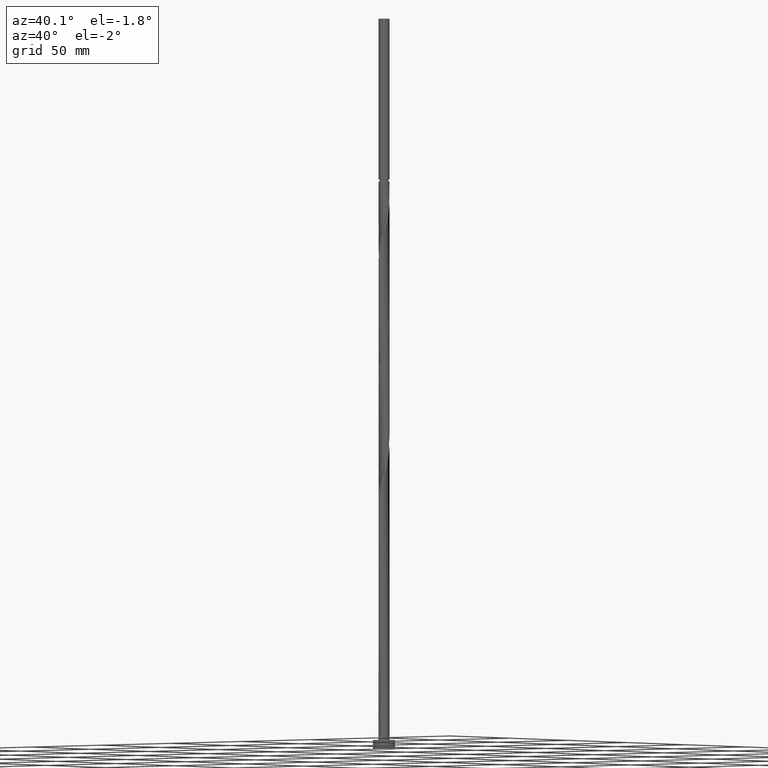
[diagram: clean part render]
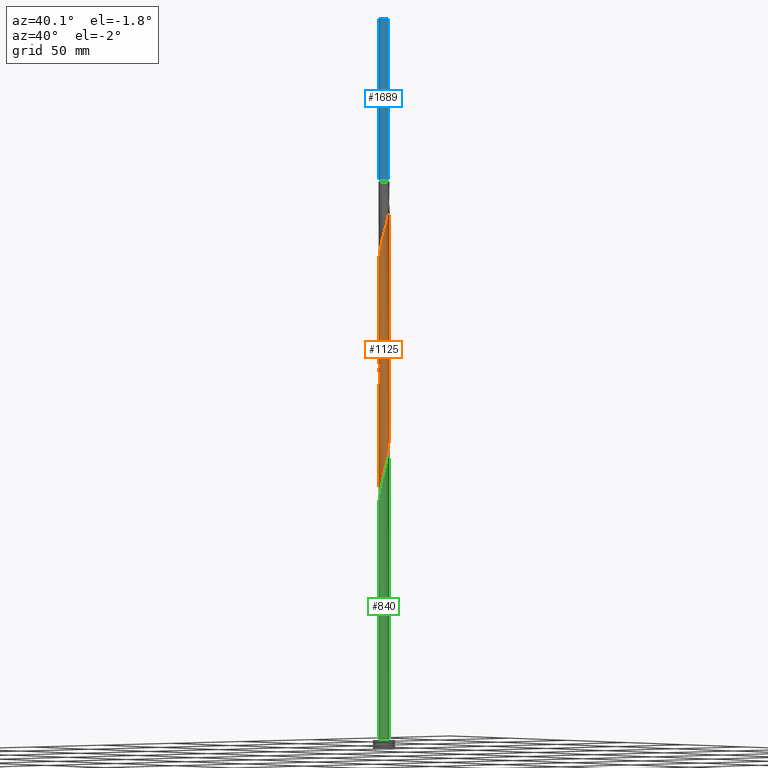
[diagram: same view with three faces highlighted in distinct colors, each labeled with its STEP entity id]
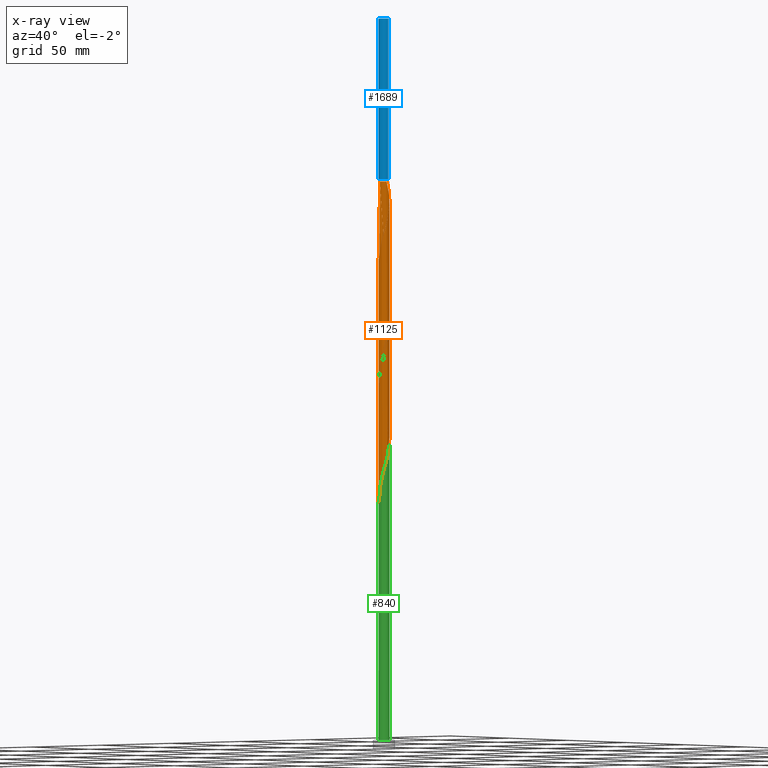
[diagram: x-ray of the same camera — body ghosted, the three highlighted faces saturated]
A machine part, auxiliary view with three faces highlighted in distinct colors.
The next image is the same camera in x-ray (body ghosted, the three faces saturated) — at least one of them is partly hidden behind the body in this view.
Their STEP definitions:

[orange] entity #1125 — the highlighted cylindrical surface (bore or boss wall) has radius 3 mm, axis along (-0, -0, -1).
#2 = CARTESIAN_POINT ( 'NONE',  ( 2.999999999999999112, 3.124218822919013652E-15, 229.6826967982752876 ) ) ;
#11 = CARTESIAN_POINT ( 'NONE',  ( -1.741185482790978067, -2.443004935426440039, 206.4461424436426285 ) ) ;
#21 = CARTESIAN_POINT ( 'NONE',  ( -2.861491667719901155, -0.9010357570982413522, 262.0016979991981998 ) ) ;
#22 = DIRECTION ( 'NONE',  ( -0.000000000000000000, -0.000000000000000000, -1.000000000000000000 ) ) ;
#26 = CARTESIAN_POINT ( 'NONE',  ( 2.247618455994261133, -1.987010638188424938, 222.0016979991982566 ) ) ;
#27 = EDGE_CURVE ( 'NONE', #1034, #711, #1568, .T. ) ;
#29 = CARTESIAN_POINT ( 'NONE',  ( -3.000000000000004441, -3.737103855166255906E-16, 258.7651436445656259 ) ) ;
#37 = CARTESIAN_POINT ( 'NONE',  ( 0.9582386936374899244, -2.860279830445433991, 216.4461424436427137 ) ) ;
#47 = CARTESIAN_POINT ( 'NONE',  ( 2.424175730171094223, 1.795214230025620861, 236.4461424436426853 ) ) ;
#49 = CARTESIAN_POINT ( 'NONE',  ( 0.6504259784947309386, 2.928642355512054429, 306.4461424436426569 ) ) ;
#51 = ORIENTED_EDGE ( 'NONE', *, *, #172, .F. ) ;
#57 = CARTESIAN_POINT ( 'NONE',  ( 2.980586974261062672, 0.3407363920471038199, 230.8905868880871139 ) ) ;
#58 = CARTESIAN_POINT ( 'NONE',  ( -2.766788993523056739, 1.201790650553046236, 192.0016979991982851 ) ) ;
#60 = CARTESIAN_POINT ( 'NONE',  ( 2.424175730171096443, -1.795214230025627522, 285.3350313325315710 ) ) ;
#67 = CARTESIAN_POINT ( 'NONE',  ( 2.038775222402704035, -2.223244857174722089, 154.2239202214204568 ) ) ;
#77 = CARTESIAN_POINT ( 'NONE',  ( -1.245111594254570964, 2.729413328510879033, 250.8905868880871424 ) ) ;
#78 = CARTESIAN_POINT ( 'NONE',  ( -2.247618455994261577, 1.987010638188424050, 188.6683646658648570 ) ) ;
#79 = EDGE_CURVE ( 'NONE', #580, #1280, #1336, .T. ) ;
#83 = DIRECTION ( 'NONE',  ( -0.000000000000000000, -0.000000000000000000, -1.000000000000000000 ) ) ;
#89 = CARTESIAN_POINT ( 'NONE',  ( 2.766788993523056739, -1.201790650553047124, 158.6683646658648854 ) ) ;
#90 = CARTESIAN_POINT ( 'NONE',  ( -2.456461689585820007, 1.750776419202126677, 256.4461424436427137 ) ) ;
#92 = CARTESIAN_POINT ( 'NONE',  ( 3.000000000000000444, 3.673940397442059868E-16, 310.8905868880871139 ) ) ;
#95 = CARTESIAN_POINT ( 'NONE',  ( 0.6504259784947260536, -2.928642355512052653, 148.6683646658649138 ) ) ;
#99 = CARTESIAN_POINT ( 'NONE',  ( -2.999999999999999556, 1.778861435059151567E-15, 263.0160301316086588 ) ) ;
#147 = CARTESIAN_POINT ( 'NONE',  ( 3.000000000000000444, 3.673940397442059868E-16, 400.0000000000000000 ) ) ;
#158 = CARTESIAN_POINT ( 'NONE',  ( -2.999999999999975131, 0.000000000000000000, 310.8905868880871139 ) ) ;
#163 = VERTEX_POINT ( 'NONE', #158 ) ;
#166 = CARTESIAN_POINT ( 'NONE',  ( -2.611625341554443924, -1.476283534877587789, 264.2239202214203146 ) ) ;
#172 = EDGE_CURVE ( 'NONE', #1114, #711, #744, .T. ) ;
#179 = CARTESIAN_POINT ( 'NONE',  ( 0.9059989139450649320, 2.877253563794371249, 243.1128091103093993 ) ) ;
#181 = CARTESIAN_POINT ( 'NONE',  ( -2.986297077045553916, -0.2864083930844377734, 259.7794757769759713 ) ) ;
#188 = ORIENTED_EDGE ( 'NONE', *, *, #713, .F. ) ;
#189 = CARTESIAN_POINT ( 'NONE',  ( -0.9059989139450634887, -2.877253563794372138, 209.7794757769759997 ) ) ;
#191 = CARTESIAN_POINT ( 'NONE',  ( -0.2879860105828826455, 3.002746436205634417, 309.7794757769760281 ) ) ;
#198 = CARTESIAN_POINT ( 'NONE',  ( 2.844610918258236865, 0.9529893618115734544, 233.1128091103093141 ) ) ;
#199 = CARTESIAN_POINT ( 'NONE',  ( 1.785379858637177408, -2.410895841875524415, 219.7794757769759713 ) ) ;
#201 = CARTESIAN_POINT ( 'NONE',  ( -0.02731362638454108011, -2.999875658392152644, 275.3350313325314005 ) ) ;
#208 = CARTESIAN_POINT ( 'NONE',  ( -1.531984494871651670, 2.598546826576325852, 185.3350313325315710 ) ) ;
#210 = CARTESIAN_POINT ( 'NONE',  ( 1.997955648279248875, -2.259998966802002851, 283.1128091103093993 ) ) ;
#218 = CARTESIAN_POINT ( 'NONE',  ( 1.741185482790978956, 2.443004935426439150, 173.1128091103093141 ) ) ;
#220 = CARTESIAN_POINT ( 'NONE',  ( 2.211065689225172548, -2.027606598413814076, 284.2239202214204283 ) ) ;
#224 = VECTOR ( 'NONE', #83, 1000.000000000000000 ) ;
#229 = CARTESIAN_POINT ( 'NONE',  ( 2.956194341916738022, -0.6002808636434362466, 160.8905868880871139 ) ) ;
#238 = CARTESIAN_POINT ( 'NONE',  ( 1.531984494871650559, -2.598546826576326296, 152.0016979991982566 ) ) ;
#241 = CARTESIAN_POINT ( 'NONE',  ( 0.000000000000000000, 0.000000000000000000, 400.0000000000000000 ) ) ;
#247 = CARTESIAN_POINT ( 'NONE',  ( 0.9582386936374899244, -2.860279830445433991, 149.7794757769759997 ) ) ;
#259 = CARTESIAN_POINT ( 'NONE',  ( 0.000000000000000000, 0.000000000000000000, 310.8905868880871139 ) ) ;
#273 =( BOUNDED_CURVE ( )  B_SPLINE_CURVE ( 2, ( #2, #592, #442, #1023, #1608, #876, #1127, #1713, #26, #617, #199, #1194, #1777, #37, #328, #902, #1060, #1646, #336, #189, #915, #1358, #11, #600, #795, #936, #498, #1812, #1521, #1682, #1112, #510, #1532, #352, #1241, #58, #1397, #1232, #78, #1104, #1690, #208, #1536, #522, #925, #1822, #1098, #1840, #369, #360, #655, #1375, #218, #1386, #945, #1080, #1251, #1220, #787, #644, #955, #1831, #667, #229, #965, #89, #1803, #677, #1557, #67, #1547, #238, #1407, #247, #95, #1703, #688, #1261, #539, #1664, #1097, #1111, #1396, #1830, #1702, #387, #1231, #1681, #1673, #359, #935, #368, #462 ),
 .UNSPECIFIED., .F., .T. ) 
 B_SPLINE_CURVE_WITH_KNOTS ( ( 3, 2, 2, 2, 2, 2, 2, 2, 2, 2, 2, 2, 2, 2, 2, 2, 2, 2, 2, 2, 2, 2, 2, 2, 2, 2, 2, 2, 2, 2, 2, 2, 2, 2, 2, 2, 2, 2, 2, 2, 2, 2, 2, 2, 2, 2, 3 ),
 ( 0.5545286012773115170, 0.5583333333333333481, 0.5666666666666666519, 0.5749999999999999556, 0.5833333333333333703, 0.5916666666666666741, 0.5999999999999999778, 0.6083333333333332815, 0.6166666666666666963, 0.6250000000000000000, 0.6333333333333333037, 0.6416666666666667185, 0.6500000000000000222, 0.6583333333333333259, 0.6666666666666666297, 0.6750000000000000444, 0.6833333333333333481, 0.6916666666666666519, 0.6999999999999999556, 0.7083333333333333703, 0.7166666666666666741, 0.7249999999999999778, 0.7333333333333332815, 0.7416666666666666963, 0.7500000000000000000, 0.7583333333333333037, 0.7666666666666667185, 0.7750000000000000222, 0.7833333333333333259, 0.7916666666666666297, 0.8000000000000000444, 0.8083333333333333481, 0.8166666666666666519, 0.8249999999999999556, 0.8333333333333333703, 0.8416666666666666741, 0.8499999999999999778, 0.8583333333333332815, 0.8666666666666666963, 0.8750000000000000000, 0.8833333333333333037, 0.8916666666666667185, 0.8999999999999999112, 0.9083333333333332149, 0.9166666666666665186, 0.9250000000000000444, 0.9295286012773116280 ),
 .UNSPECIFIED. ) 
 CURVE ( )  GEOMETRIC_REPRESENTATION_ITEM ( )  RATIONAL_B_SPLINE_CURVE ( ( 0.9066196499552310328, 0.9068171577856438681, 0.9090909090909428114, 0.9041108139711909741, 0.9090909090909428114, 0.9041108139711909741, 0.9090909090909428114, 0.9041108139711909741, 0.9090909090909428114, 0.9041108139711909741, 0.9090909090909428114, 0.9041108139711909741, 0.9090909090909428114, 0.9041108139711909741, 0.9090909090909428114, 0.9041108139711909741, 0.9090909090909428114, 0.9041108139711909741, 0.9090909090909428114, 0.9041108139711909741, 0.9090909090909428114, 0.9041108139711909741, 0.9090909090909428114, 0.9041108139711909741, 0.9090909090909428114, 0.9041108139711909741, 0.9090909090909428114, 0.9041108139711909741, 0.9090909090909428114, 0.9041108139711909741, 0.9090909090909428114, 0.9041108139711909741, 0.9090909090909428114, 0.9041108139711909741, 0.9090909090909428114, 0.9041108139711909741, 0.9090909090909428114, 0.9041108139711909741, 0.9090909090909428114, 0.9041108139711909741, 0.9090909090909428114, 0.9041108139711909741, 0.9090909090909428114, 0.9041108139711909741, 0.9090909090909428114, 0.9041108139711909741, 0.9090909090909428114, 0.9041108139711909741, 0.9090909090909428114, 0.9041108139711909741, 0.9090909090909428114, 0.9041108139711909741, 0.9090909090909428114, 0.9041108139711909741, 0.9090909090909428114, 0.9041108139711909741, 0.9090909090909428114, 0.9041108139711909741, 0.9090909090909428114, 0.9041108139711909741, 0.9090909090909428114, 0.9041108139711909741, 0.9090909090909428114, 0.9041108139711909741, 0.9090909090909428114, 0.9041108139711909741, 0.9090909090909428114, 0.9041108139711909741, 0.9090909090909428114, 0.9041108139711909741, 0.9090909090909428114, 0.9041108139711909741, 0.9090909090909428114, 0.9041108139711909741, 0.9090909090909428114, 0.9041108139711909741, 0.9090909090909428114, 0.9041108139711909741, 0.9090909090909428114, 0.9041108139711909741, 0.9090909090909428114, 0.9041108139711909741, 0.9090909090909428114, 0.9041108139711909741, 0.9090909090909428114, 0.9041108139711909741, 0.9090909090909428114, 0.9041108139711909741, 0.9090909090909428114, 0.9041108139711909741, 0.9090909090909428114, 0.9063845652764898064, 0.9066196499552311439 ) ) 
 REPRESENTATION_ITEM ( '' )  );
#313 = CARTESIAN_POINT ( 'NONE',  ( -2.766788993523062512, -1.201790650553046458, 263.1128091103093993 ) ) ;
#328 = CARTESIAN_POINT ( 'NONE',  ( 0.6504259784947260536, -2.928642355512052653, 215.3350313325315994 ) ) ;
#336 = CARTESIAN_POINT ( 'NONE',  ( -0.5969924622639740663, -2.939999999999999503, 210.8905868880870571 ) ) ;
#343 = CARTESIAN_POINT ( 'NONE',  ( 2.844610918258239973, -0.9529893618115790055, 288.6683646658648854 ) ) ;
#352 = CARTESIAN_POINT ( 'NONE',  ( -2.956194341916738022, 0.6002808636434359135, 194.2239202214204283 ) ) ;
#354 = CARTESIAN_POINT ( 'NONE',  ( 1.484415317302709925, -2.626010904050890105, 280.8905868880871139 ) ) ;
#359 = CARTESIAN_POINT ( 'NONE',  ( -2.944774136347767968, -0.6540087066196497156, 132.0016979991982851 ) ) ;
#360 = CARTESIAN_POINT ( 'NONE',  ( 0.9059989139450649320, 2.877253563794371249, 176.4461424436426285 ) ) ;
#368 = CARTESIAN_POINT ( 'NONE',  ( -3.000000000000000444, -0.1709212123392913063, 130.2882881076598665 ) ) ;
#369 = CARTESIAN_POINT ( 'NONE',  ( 0.5969924622639745104, 2.939999999999999503, 177.5572535547537711 ) ) ;
#371 = CARTESIAN_POINT ( 'NONE',  ( 2.247618455994266462, 1.987010638188424938, 299.7794757769759713 ) ) ;
#379 = LINE ( 'NONE', #542, #224 ) ;
#387 = CARTESIAN_POINT ( 'NONE',  ( -2.424175730171093779, -1.795214230025623081, 136.4461424436426569 ) ) ;
#390 = CARTESIAN_POINT ( 'NONE',  ( -2.999999999999999556, 1.778861435059151567E-15, 263.0160301316086588 ) ) ;
#416 = EDGE_CURVE ( 'NONE', #580, #1121, #975, .T. ) ;
#442 = CARTESIAN_POINT ( 'NONE',  ( 2.986297077045549031, -0.2864083930844399939, 228.6683646658649138 ) ) ;
#462 = CARTESIAN_POINT ( 'NONE',  ( -2.999999999999999112, 4.021123748158922761E-15, 129.6826967982752592 ) ) ;
#464 = CARTESIAN_POINT ( 'NONE',  ( -1.531984494871655222, -2.598546826576330737, 269.7794757769760281 ) ) ;
#469 = CARTESIAN_POINT ( 'NONE',  ( -1.531984494871651670, 2.598546826576325852, 252.0016979991983135 ) ) ;
#471 = CARTESIAN_POINT ( 'NONE',  ( -3.000000000000004441, -0.1435319978602539459, 259.2736921701297206 ) ) ;
#479 = CARTESIAN_POINT ( 'NONE',  ( 1.195207115623886818, 2.751632233922627346, 242.0016979991982282 ) ) ;
#486 = CARTESIAN_POINT ( 'NONE',  ( 2.584311715169899770, 1.523592123514560415, 235.3350313325315710 ) ) ;
#497 = CARTESIAN_POINT ( 'NONE',  ( 2.999999999999999112, 3.124218822919013652E-15, 229.6826967982752876 ) ) ;
#498 = CARTESIAN_POINT ( 'NONE',  ( -2.584311715169899770, -1.523592123514560859, 202.0016979991982851 ) ) ;
#500 = CARTESIAN_POINT ( 'NONE',  ( 2.944774136347770188, -0.6540087066196539345, 289.7794757769760281 ) ) ;
#510 = CARTESIAN_POINT ( 'NONE',  ( -3.016399812174359596, -0.02746407747455821211, 196.4461424436426569 ) ) ;
#512 = CARTESIAN_POINT ( 'NONE',  ( 0.3426132633519656800, 2.997004880578674424, 307.5572535547537427 ) ) ;
#522 = CARTESIAN_POINT ( 'NONE',  ( -0.9582386936374909236, 2.860279830445433547, 183.1128091103093709 ) ) ;
#523 = CARTESIAN_POINT ( 'NONE',  ( -2.611625341554437707, 1.476283534877586012, 257.5572535547537427 ) ) ;
#539 = CARTESIAN_POINT ( 'NONE',  ( -0.5969924622639740663, -2.939999999999999503, 144.2239202214204568 ) ) ;
#542 = CARTESIAN_POINT ( 'NONE',  ( -3.000000000000000444, 0.000000000000000000, 400.0000000000000000 ) ) ;
#569 = CARTESIAN_POINT ( 'NONE',  ( -3.000000000000004885, -3.737103855166255413E-16, 258.7651436445656259 ) ) ;
#574 = EDGE_CURVE ( 'NONE', #163, #1121, #1265, .T. ) ;
#580 = VERTEX_POINT ( 'NONE', #569 ) ;
#592 = CARTESIAN_POINT ( 'NONE',  ( 2.999999999999999556, -0.1435319978602524471, 229.1741482727112498 ) ) ;
#600 = CARTESIAN_POINT ( 'NONE',  ( -1.997955648279247542, -2.259998966801997522, 205.3350313325315426 ) ) ;
#605 = DIRECTION ( 'NONE',  ( -0.000000000000000000, -0.000000000000000000, -1.000000000000000000 ) ) ;
#617 = CARTESIAN_POINT ( 'NONE',  ( 2.038775222402704035, -2.223244857174722089, 220.8905868880871992 ) ) ;
#628 = CARTESIAN_POINT ( 'NONE',  ( 0.2879860105828851990, 3.002746436205627756, 245.3350313325315710 ) ) ;
#640 = CARTESIAN_POINT ( 'NONE',  ( 0.2879860105828842554, -3.002746436205634417, 276.4461424436426569 ) ) ;
#643 = CARTESIAN_POINT ( 'NONE',  ( 3.000000000000000444, 0.1709212123392943872, 230.2882881076598380 ) ) ;
#644 = CARTESIAN_POINT ( 'NONE',  ( 2.944774136347767968, 0.6540087066196483834, 165.3350313325315994 ) ) ;
#653 = CARTESIAN_POINT ( 'NONE',  ( -0.9582386936374909236, 2.860279830445433547, 249.7794757769759997 ) ) ;
#655 = CARTESIAN_POINT ( 'NONE',  ( 1.195207115623886818, 2.751632233922627346, 175.3350313325315710 ) ) ;
#657 = CARTESIAN_POINT ( 'NONE',  ( 0.5969924622639738443, -2.940000000000004832, 277.5572535547537996 ) ) ;
#667 = CARTESIAN_POINT ( 'NONE',  ( 2.986297077045549031, -0.2864083930844399939, 162.0016979991982282 ) ) ;
#669 = CARTESIAN_POINT ( 'NONE',  ( 2.611625341554443924, 1.476283534877587122, 297.5572535547537427 ) ) ;
#671 = CARTESIAN_POINT ( 'NONE',  ( -0.5969924622640615519, 2.940000000000879687, 310.8905868880871139 ) ) ;
#674 = ORIENTED_EDGE ( 'NONE', *, *, #574, .T. ) ;
#677 = CARTESIAN_POINT ( 'NONE',  ( 2.456461689585818675, -1.750776419202128231, 156.4461424436427137 ) ) ;
#688 = CARTESIAN_POINT ( 'NONE',  ( 0.02731362638453841557, -2.999875658392147759, 146.4461424436426853 ) ) ;
#711 = VERTEX_POINT ( 'NONE', #1752 ) ;
#713 = EDGE_CURVE ( 'NONE', #711, #1280, #273, .T. ) ;
#744 = LINE ( 'NONE', #147, #818 ) ;
#770 = CARTESIAN_POINT ( 'NONE',  ( 1.484415317302708592, 2.626010904050883887, 240.8905868880871139 ) ) ;
#772 = CARTESIAN_POINT ( 'NONE',  ( 1.245111594254574072, 2.729413328510883030, 304.2239202214204283 ) ) ;
#779 = CARTESIAN_POINT ( 'NONE',  ( 2.944774136347767968, 0.6540087066196483834, 232.0016979991982282 ) ) ;
#781 = CARTESIAN_POINT ( 'NONE',  ( 2.980586974261068001, -0.3407363920471058738, 290.8905868880870571 ) ) ;
#787 = CARTESIAN_POINT ( 'NONE',  ( 2.844610918258236865, 0.9529893618115734544, 166.4461424436426569 ) ) ;
#789 = CARTESIAN_POINT ( 'NONE',  ( 2.861491667719901599, 0.9010357570982404640, 295.3350313325314573 ) ) ;
#795 = CARTESIAN_POINT ( 'NONE',  ( -2.211065689225169884, -2.027606598413810080, 204.2239202214204568 ) ) ;
#797 = CARTESIAN_POINT ( 'NONE',  ( 1.785379858637182293, 2.410895841875526191, 302.0016979991981430 ) ) ;
#804 = CARTESIAN_POINT ( 'NONE',  ( -2.956194341916738022, 0.6002808636434359135, 260.8905868880870571 ) ) ;
#818 = VECTOR ( 'NONE', #22, 1000.000000000000000 ) ;
#828 = ORIENTED_EDGE ( 'NONE', *, *, #416, .F. ) ;
#876 = CARTESIAN_POINT ( 'NONE',  ( 2.766788993523056739, -1.201790650553047124, 225.3350313325315994 ) ) ;
#901 = CARTESIAN_POINT ( 'NONE',  ( -2.038775222402704035, 2.223244857174721645, 254.2239202214204283 ) ) ;
#902 = CARTESIAN_POINT ( 'NONE',  ( 0.3426132633519633486, -2.997004880578669095, 214.2239202214204852 ) ) ;
#914 = CARTESIAN_POINT ( 'NONE',  ( -0.3426132633519636261, 2.997004880578669095, 247.5572535547537711 ) ) ;
#915 = CARTESIAN_POINT ( 'NONE',  ( -1.195207115623886374, -2.751632233922627346, 208.6683646658649138 ) ) ;
#917 = CARTESIAN_POINT ( 'NONE',  ( 2.766788993523062512, 1.201790650553045348, 296.4461424436427137 ) ) ;
#925 = CARTESIAN_POINT ( 'NONE',  ( -0.6504259784947272749, 2.928642355512051765, 182.0016979991982282 ) ) ;
#935 = CARTESIAN_POINT ( 'NONE',  ( -2.980586974261062672, -0.3407363920471039864, 130.8905868880871424 ) ) ;
#936 = CARTESIAN_POINT ( 'NONE',  ( -2.424175730171093779, -1.795214230025623081, 203.1128091103093425 ) ) ;
#938 = CARTESIAN_POINT ( 'NONE',  ( 1.741185482790978512, -2.443004935426445812, 282.0016979991980861 ) ) ;
#945 = CARTESIAN_POINT ( 'NONE',  ( 2.211065689225170772, 2.027606598413810080, 170.8905868880871424 ) ) ;
#955 = CARTESIAN_POINT ( 'NONE',  ( 2.980586974261062672, 0.3407363920471038199, 164.2239202214204852 ) ) ;
#957 = DIRECTION ( 'NONE',  ( -1.000000000000000000, 0.000000000000000000, 0.000000000000000000 ) ) ;
#965 = CARTESIAN_POINT ( 'NONE',  ( 2.861491667719897602, -0.9010357570982430175, 159.7794757769759997 ) ) ;
#975 =( BOUNDED_CURVE ( )  B_SPLINE_CURVE ( 2, ( #29, #471, #181, #1621, #21, #313, #166, #1333, #1638, #1189, #1771, #464, #1042, #1629, #1349, #1399, #201, #640, #657, #1222, #1655, #354, #938, #210, #220, #60, #1389, #1213, #343, #500, #781, #1503, #1071, #1513, #789, #917, #669, #1666, #371, #1062, #797, #1083, #772, #1243, #49, #512, #1789, #191, #1539 ),
 .UNSPECIFIED., .F., .T. ) 
 B_SPLINE_CURVE_WITH_KNOTS ( ( 3, 2, 2, 2, 2, 2, 2, 2, 2, 2, 2, 2, 2, 2, 2, 2, 2, 2, 2, 2, 2, 2, 2, 2, 3 ),
 ( 0.5545286012773116280, 0.5583333333333333481, 0.5666666666666666519, 0.5749999999999999556, 0.5833333333333332593, 0.5916666666666666741, 0.5999999999999999778, 0.6083333333333333925, 0.6166666666666666963, 0.6250000000000000000, 0.6333333333333333037, 0.6416666666666666075, 0.6500000000000000222, 0.6583333333333333259, 0.6666666666666667407, 0.6750000000000000444, 0.6833333333333333481, 0.6916666666666666519, 0.6999999999999999556, 0.7083333333333332593, 0.7166666666666666741, 0.7249999999999999778, 0.7333333333333333925, 0.7416666666666666963, 0.7500000000000000000 ),
 .UNSPECIFIED. ) 
 CURVE ( )  GEOMETRIC_REPRESENTATION_ITEM ( )  RATIONAL_B_SPLINE_CURVE ( ( 0.9066196499552379162, 0.9068171577856507515, 0.9090909090909496948, 0.9041108139711977465, 0.9090909090909496948, 0.9041108139711977465, 0.9090909090909496948, 0.9041108139711977465, 0.9090909090909496948, 0.9041108139711977465, 0.9090909090909496948, 0.9041108139711977465, 0.9090909090909496948, 0.9041108139711977465, 0.9090909090909496948, 0.9041108139711977465, 0.9090909090909496948, 0.9041108139711977465, 0.9090909090909496948, 0.9041108139711977465, 0.9090909090909496948, 0.9041108139711977465, 0.9090909090909496948, 0.9041108139711977465, 0.9090909090909496948, 0.9041108139711977465, 0.9090909090909496948, 0.9041108139711977465, 0.9090909090909496948, 0.9041108139711977465, 0.9090909090909496948, 0.9041108139711977465, 0.9090909090909496948, 0.9041108139711977465, 0.9090909090909496948, 0.9041108139711977465, 0.9090909090909496948, 0.9041108139711977465, 0.9090909090909496948, 0.9041108139711977465, 0.9090909090909496948, 0.9041108139711977465, 0.9090909090909496948, 0.9041108139711977465, 0.9090909090909496948, 0.9041108139711977465, 0.9090909090909496948, 0.9041108139711977465, 0.9090909090909496948 ) ) 
 REPRESENTATION_ITEM ( '' )  );
#982 = EDGE_CURVE ( 'NONE', #163, #1034, #379, .T. ) ;
#1023 = CARTESIAN_POINT ( 'NONE',  ( 2.956194341916738022, -0.6002808636434362466, 227.5572535547537996 ) ) ;
#1034 = VERTEX_POINT ( 'NONE', #99 ) ;
#1042 = CARTESIAN_POINT ( 'NONE',  ( -1.245111594254573850, -2.729413328510883030, 270.8905868880871139 ) ) ;
#1052 = CARTESIAN_POINT ( 'NONE',  ( -0.02731362638453916497, 2.999875658392147759, 246.4461424436426569 ) ) ;
#1053 = AXIS2_PLACEMENT_3D ( 'NONE', #259, #1294, #1875 ) ;
#1060 = CARTESIAN_POINT ( 'NONE',  ( 0.02731362638453841557, -2.999875658392147759, 213.1128091103093141 ) ) ;
#1062 = CARTESIAN_POINT ( 'NONE',  ( 2.038775222402708476, 2.223244857174723865, 300.8905868880871708 ) ) ;
#1071 = CARTESIAN_POINT ( 'NONE',  ( 2.986297077045553916, 0.2864083930844361081, 293.1128091103092856 ) ) ;
#1080 = CARTESIAN_POINT ( 'NONE',  ( 2.424175730171094223, 1.795214230025620861, 169.7794757769760565 ) ) ;
#1083 = CARTESIAN_POINT ( 'NONE',  ( 1.531984494871657221, 2.598546826576328517, 303.1128091103093993 ) ) ;
#1095 = EDGE_LOOP ( 'NONE', ( #1519, #674, #828, #1578, #188, #51, #1444, #1259 ) ) ;
#1097 = CARTESIAN_POINT ( 'NONE',  ( -1.195207115623886374, -2.751632233922627346, 142.0016979991982566 ) ) ;
#1098 = CARTESIAN_POINT ( 'NONE',  ( -0.02731362638453916497, 2.999875658392147759, 179.7794757769759997 ) ) ;
#1100 = VECTOR ( 'NONE', #605, 1000.000000000000000 ) ;
#1104 = CARTESIAN_POINT ( 'NONE',  ( -2.038775222402704035, 2.223244857174721645, 187.5572535547537996 ) ) ;
#1111 = CARTESIAN_POINT ( 'NONE',  ( -1.484415317302708370, -2.626010904050883887, 140.8905868880871424 ) ) ;
#1112 = CARTESIAN_POINT ( 'NONE',  ( -2.980586974261062672, -0.3407363920471039864, 197.5572535547537711 ) ) ;
#1114 = VERTEX_POINT ( 'NONE', #92 ) ;
#1121 = VERTEX_POINT ( 'NONE', #671 ) ;
#1125 = ADVANCED_FACE ( 'NONE', ( #1527 ), #1685, .T. ) ;
#1127 = CARTESIAN_POINT ( 'NONE',  ( 2.611625341554437707, -1.476283534877586234, 224.2239202214204852 ) ) ;
#1173 = CARTESIAN_POINT ( 'NONE',  ( -3.000000000000000444, 0.000000000000000000, 400.0000000000000000 ) ) ;
#1189 = CARTESIAN_POINT ( 'NONE',  ( -2.038775222402708476, -2.223244857174724309, 267.5572535547538564 ) ) ;
#1194 = CARTESIAN_POINT ( 'NONE',  ( 1.531984494871650559, -2.598546826576326296, 218.6683646658649138 ) ) ;
#1202 = CARTESIAN_POINT ( 'NONE',  ( -1.785379858637178074, 2.410895841875523526, 253.1128091103093709 ) ) ;
#1211 = CARTESIAN_POINT ( 'NONE',  ( 1.741185482790978956, 2.443004935426439150, 239.7794757769759997 ) ) ;
#1213 = CARTESIAN_POINT ( 'NONE',  ( 2.744447700168710202, -1.251970017003504188, 287.5572535547537427 ) ) ;
#1219 = CARTESIAN_POINT ( 'NONE',  ( 1.997955648279247987, 2.259998966801996634, 238.6683646658649707 ) ) ;
#1220 = CARTESIAN_POINT ( 'NONE',  ( 2.744447700168704429, 1.251970017003500191, 167.5572535547537711 ) ) ;
#1222 = CARTESIAN_POINT ( 'NONE',  ( 0.9059989139450626006, -2.877253563794377023, 278.6683646658649991 ) ) ;
#1231 = CARTESIAN_POINT ( 'NONE',  ( -2.584311715169899770, -1.523592123514560859, 135.3350313325315426 ) ) ;
#1232 = CARTESIAN_POINT ( 'NONE',  ( -2.456461689585820007, 1.750776419202126677, 189.7794757769760281 ) ) ;
#1241 = CARTESIAN_POINT ( 'NONE',  ( -2.861491667719897602, 0.9010357570982413522, 193.1128091103094278 ) ) ;
#1243 = CARTESIAN_POINT ( 'NONE',  ( 0.9582386936374943653, 2.860279830445437987, 305.3350313325316847 ) ) ;
#1251 = CARTESIAN_POINT ( 'NONE',  ( 2.584311715169899770, 1.523592123514560415, 168.6683646658648854 ) ) ;
#1253 = CARTESIAN_POINT ( 'NONE',  ( -3.000000000000001332, 0.1435319978602395408, 262.5074816060446210 ) ) ;
#1259 = ORIENTED_EDGE ( 'NONE', *, *, #27, .F. ) ;
#1261 = CARTESIAN_POINT ( 'NONE',  ( -0.2879860105828863648, -3.002746436205628200, 145.3350313325315426 ) ) ;
#1265 = CIRCLE ( 'NONE', #1053, 2.999999999999975131 ) ;
#1280 = VERTEX_POINT ( 'NONE', #1845 ) ;
#1294 = DIRECTION ( 'NONE',  ( -0.000000000000000000, -0.000000000000000000, -1.000000000000000000 ) ) ;
#1333 = CARTESIAN_POINT ( 'NONE',  ( -2.456461689585825781, -1.750776419202128453, 265.3350313325315710 ) ) ;
#1336 = LINE ( 'NONE', #1173, #1100 ) ;
#1349 = CARTESIAN_POINT ( 'NONE',  ( -0.6504259784947293843, -2.928642355512054429, 273.1128091103092288 ) ) ;
#1356 = CARTESIAN_POINT ( 'NONE',  ( 2.211065689225170772, 2.027606598413810080, 237.5572535547537996 ) ) ;
#1358 = CARTESIAN_POINT ( 'NONE',  ( -1.484415317302708370, -2.626010904050883887, 207.5572535547537996 ) ) ;
#1375 = CARTESIAN_POINT ( 'NONE',  ( 1.484415317302708592, 2.626010904050883887, 174.2239202214204568 ) ) ;
#1386 = CARTESIAN_POINT ( 'NONE',  ( 1.997955648279247987, 2.259998966801996634, 172.0016979991982282 ) ) ;
#1389 = CARTESIAN_POINT ( 'NONE',  ( 2.584311715169901547, -1.523592123514565078, 286.4461424436427137 ) ) ;
#1396 = CARTESIAN_POINT ( 'NONE',  ( -1.741185482790978067, -2.443004935426440039, 139.7794757769760281 ) ) ;
#1397 = CARTESIAN_POINT ( 'NONE',  ( -2.611625341554437707, 1.476283534877586012, 190.8905868880871139 ) ) ;
#1399 = CARTESIAN_POINT ( 'NONE',  ( -0.3426132633519652360, -2.997004880578674424, 274.2239202214204852 ) ) ;
#1400 = CARTESIAN_POINT ( 'NONE',  ( -2.986297077045549031, 0.2864083930844389392, 262.0016979991982566 ) ) ;
#1407 = CARTESIAN_POINT ( 'NONE',  ( 1.245111594254570742, -2.729413328510879033, 150.8905868880871424 ) ) ;
#1444 = ORIENTED_EDGE ( 'NONE', *, *, #172, .T. ) ;
#1484 = AXIS2_PLACEMENT_3D ( 'NONE', #241, #1550, #957 ) ;
#1503 = CARTESIAN_POINT ( 'NONE',  ( 3.016399812174365813, -0.02746407747456066847, 292.0016979991981998 ) ) ;
#1509 = CARTESIAN_POINT ( 'NONE',  ( 2.744447700168704429, 1.251970017003500191, 234.2239202214204283 ) ) ;
#1513 = CARTESIAN_POINT ( 'NONE',  ( 2.956194341916743795, 0.6002808636434358025, 294.2239202214205420 ) ) ;
#1519 = ORIENTED_EDGE ( 'NONE', *, *, #982, .F. ) ;
#1521 = CARTESIAN_POINT ( 'NONE',  ( -2.844610918258235532, -0.9529893618115748977, 199.7794757769760281 ) ) ;
#1527 = FACE_OUTER_BOUND ( 'NONE', #1095, .T. ) ;
#1532 = CARTESIAN_POINT ( 'NONE',  ( -2.986297077045549031, 0.2864083930844389392, 195.3350313325315710 ) ) ;
#1536 = CARTESIAN_POINT ( 'NONE',  ( -1.245111594254570964, 2.729413328510879033, 184.2239202214204852 ) ) ;
#1539 = CARTESIAN_POINT ( 'NONE',  ( -0.5969924622640615519, 2.940000000000879687, 310.8905868880871139 ) ) ;
#1547 = CARTESIAN_POINT ( 'NONE',  ( 1.785379858637177408, -2.410895841875524415, 153.1128091103093425 ) ) ;
#1550 = DIRECTION ( 'NONE',  ( -0.000000000000000000, -0.000000000000000000, -1.000000000000000000 ) ) ;
#1557 = CARTESIAN_POINT ( 'NONE',  ( 2.247618455994261133, -1.987010638188424938, 155.3350313325315710 ) ) ;
#1568 =( BOUNDED_CURVE ( )  B_SPLINE_CURVE ( 2, ( #390, #1253, #1400, #804, #1834, #1692, #523, #90, #1662, #901, #1202, #469, #77, #653, #1787, #914, #1052, #628, #1811, #179, #479, #770, #1211, #1219, #1356, #47, #486, #1509, #198, #779, #57, #643, #497 ),
 .UNSPECIFIED., .F., .T. ) 
 B_SPLINE_CURVE_WITH_KNOTS ( ( 3, 2, 2, 2, 2, 2, 2, 2, 2, 2, 2, 2, 2, 2, 2, 2, 3 ),
 ( 0.4295286012773111839, 0.4333333333333333481, 0.4416666666666666519, 0.4500000000000000111, 0.4583333333333333148, 0.4666666666666666741, 0.4749999999999999778, 0.4833333333333333370, 0.4916666666666666408, 0.5000000000000000000, 0.5083333333333333037, 0.5166666666666667185, 0.5250000000000000222, 0.5333333333333333259, 0.5416666666666666297, 0.5500000000000000444, 0.5545286012773115170 ),
 .UNSPECIFIED. ) 
 CURVE ( )  GEOMETRIC_REPRESENTATION_ITEM ( )  RATIONAL_B_SPLINE_CURVE ( ( 0.9066196499552310328, 0.9068171577856436461, 0.9090909090909428114, 0.9041108139711909741, 0.9090909090909428114, 0.9041108139711909741, 0.9090909090909428114, 0.9041108139711909741, 0.9090909090909428114, 0.9041108139711909741, 0.9090909090909428114, 0.9041108139711909741, 0.9090909090909428114, 0.9041108139711909741, 0.9090909090909428114, 0.9041108139711909741, 0.9090909090909428114, 0.9041108139711909741, 0.9090909090909428114, 0.9041108139711909741, 0.9090909090909428114, 0.9041108139711909741, 0.9090909090909428114, 0.9041108139711909741, 0.9090909090909428114, 0.9041108139711909741, 0.9090909090909428114, 0.9041108139711909741, 0.9090909090909428114, 0.9041108139711909741, 0.9090909090909428114, 0.9063845652764899175, 0.9066196499552310328 ) ) 
 REPRESENTATION_ITEM ( '' )  );
#1578 = ORIENTED_EDGE ( 'NONE', *, *, #79, .T. ) ;
#1608 = CARTESIAN_POINT ( 'NONE',  ( 2.861491667719897602, -0.9010357570982430175, 226.4461424436426569 ) ) ;
#1621 = CARTESIAN_POINT ( 'NONE',  ( -2.956194341916743795, -0.6002808636434360245, 260.8905868880871139 ) ) ;
#1629 = CARTESIAN_POINT ( 'NONE',  ( -0.9582386936374935882, -2.860279830445438431, 272.0016979991982566 ) ) ;
#1638 = CARTESIAN_POINT ( 'NONE',  ( -2.247618455994266462, -1.987010638188425604, 266.4461424436426569 ) ) ;
#1646 = CARTESIAN_POINT ( 'NONE',  ( -0.2879860105828863648, -3.002746436205628200, 212.0016979991981998 ) ) ;
#1655 = CARTESIAN_POINT ( 'NONE',  ( 1.195207115623885707, -2.751632233922631787, 279.7794757769760281 ) ) ;
#1662 = CARTESIAN_POINT ( 'NONE',  ( -2.247618455994261577, 1.987010638188424050, 255.3350313325314858 ) ) ;
#1664 = CARTESIAN_POINT ( 'NONE',  ( -0.9059989139450634887, -2.877253563794372138, 143.1128091103093425 ) ) ;
#1666 = CARTESIAN_POINT ( 'NONE',  ( 2.456461689585825781, 1.750776419202128231, 298.6683646658648854 ) ) ;
#1673 = CARTESIAN_POINT ( 'NONE',  ( -2.844610918258235532, -0.9529893618115748977, 133.1128091103093425 ) ) ;
#1681 = CARTESIAN_POINT ( 'NONE',  ( -2.744447700168705762, -1.251970017003501301, 134.2239202214204568 ) ) ;
#1682 = CARTESIAN_POINT ( 'NONE',  ( -2.944774136347767968, -0.6540087066196497156, 198.6683646658648570 ) ) ;
#1685 = CYLINDRICAL_SURFACE ( 'NONE', #1484, 3.000000000000000444 ) ;
#1690 = CARTESIAN_POINT ( 'NONE',  ( -1.785379858637178074, 2.410895841875523526, 186.4461424436427137 ) ) ;
#1692 = CARTESIAN_POINT ( 'NONE',  ( -2.766788993523056739, 1.201790650553046236, 258.6683646658648854 ) ) ;
#1702 = CARTESIAN_POINT ( 'NONE',  ( -2.211065689225169884, -2.027606598413810080, 137.5572535547537711 ) ) ;
#1703 = CARTESIAN_POINT ( 'NONE',  ( 0.3426132633519633486, -2.997004880578669095, 147.5572535547538280 ) ) ;
#1713 = CARTESIAN_POINT ( 'NONE',  ( 2.456461689585818675, -1.750776419202128231, 223.1128091103093425 ) ) ;
#1752 = CARTESIAN_POINT ( 'NONE',  ( 2.999999999999999112, 3.124218822919013652E-15, 229.6826967982752876 ) ) ;
#1771 = CARTESIAN_POINT ( 'NONE',  ( -1.785379858637181849, -2.410895841875526191, 268.6683646658648854 ) ) ;
#1777 = CARTESIAN_POINT ( 'NONE',  ( 1.245111594254570742, -2.729413328510879033, 217.5572535547537427 ) ) ;
#1787 = CARTESIAN_POINT ( 'NONE',  ( -0.6504259784947272749, 2.928642355512051765, 248.6683646658648854 ) ) ;
#1789 = CARTESIAN_POINT ( 'NONE',  ( 0.02731362638454150685, 2.999875658392152644, 308.6683646658647717 ) ) ;
#1803 = CARTESIAN_POINT ( 'NONE',  ( 2.611625341554437707, -1.476283534877586234, 157.5572535547537711 ) ) ;
#1811 = CARTESIAN_POINT ( 'NONE',  ( 0.5969924622639745104, 2.939999999999999503, 244.2239202214205420 ) ) ;
#1812 = CARTESIAN_POINT ( 'NONE',  ( -2.744447700168705762, -1.251970017003501301, 200.8905868880871708 ) ) ;
#1822 = CARTESIAN_POINT ( 'NONE',  ( -0.3426132633519636261, 2.997004880578669095, 180.8905868880870855 ) ) ;
#1830 = CARTESIAN_POINT ( 'NONE',  ( -1.997955648279247542, -2.259998966801997522, 138.6683646658648570 ) ) ;
#1831 = CARTESIAN_POINT ( 'NONE',  ( 3.016399812174360040, 0.02746407747455640452, 163.1128091103093425 ) ) ;
#1834 = CARTESIAN_POINT ( 'NONE',  ( -2.861491667719897602, 0.9010357570982413522, 259.7794757769760281 ) ) ;
#1840 = CARTESIAN_POINT ( 'NONE',  ( 0.2879860105828851990, 3.002746436205627756, 178.6683646658649423 ) ) ;
#1845 = CARTESIAN_POINT ( 'NONE',  ( -2.999999999999999112, 4.021123748158922761E-15, 129.6826967982752592 ) ) ;
#1875 = DIRECTION ( 'NONE',  ( -1.000000000000000000, 0.000000000000000000, 0.000000000000000000 ) ) ;

[blue] entity #1689 — the highlighted cylindrical surface (edge-blend (fillet) strip) has radius 3 mm, axis along (-0, -0, -1).
#80 = DIRECTION ( 'NONE',  ( -1.000000000000000000, 0.000000000000000000, 0.000000000000000000 ) ) ;
#107 = DIRECTION ( 'NONE',  ( -0.000000000000000000, -0.000000000000000000, -1.000000000000000000 ) ) ;
#149 = VERTEX_POINT ( 'NONE', #1458 ) ;
#222 = LINE ( 'NONE', #1670, #693 ) ;
#239 = DIRECTION ( 'NONE',  ( -0.000000000000000000, -0.000000000000000000, -1.000000000000000000 ) ) ;
#289 = ORIENTED_EDGE ( 'NONE', *, *, #1069, .F. ) ;
#293 = AXIS2_PLACEMENT_3D ( 'NONE', #1706, #1818, #392 ) ;
#316 = EDGE_CURVE ( 'NONE', #149, #871, #529, .T. ) ;
#375 = CIRCLE ( 'NONE', #293, 2.999999999999974687 ) ;
#392 = DIRECTION ( 'NONE',  ( -1.000000000000000000, 0.000000000000000000, 0.000000000000000000 ) ) ;
#499 = CARTESIAN_POINT ( 'NONE',  ( 0.000000000000000000, 0.000000000000000000, 400.0000000000000000 ) ) ;
#511 = CYLINDRICAL_SURFACE ( 'NONE', #1176, 3.000000000000000444 ) ;
#529 = CIRCLE ( 'NONE', #1010, 3.000000000000000444 ) ;
#563 = LINE ( 'NONE', #1171, #1537 ) ;
#693 = VECTOR ( 'NONE', #107, 1000.000000000000000 ) ;
#723 = CARTESIAN_POINT ( 'NONE',  ( 0.000000000000000000, 0.000000000000000000, 400.0000000000000000 ) ) ;
#803 = FACE_OUTER_BOUND ( 'NONE', #1730, .T. ) ;
#824 = CARTESIAN_POINT ( 'NONE',  ( 3.000000000000000444, 3.673940397442059868E-16, 400.0000000000000000 ) ) ;
#859 = ORIENTED_EDGE ( 'NONE', *, *, #1548, .T. ) ;
#871 = VERTEX_POINT ( 'NONE', #824 ) ;
#923 = ORIENTED_EDGE ( 'NONE', *, *, #1385, .F. ) ;
#1010 = AXIS2_PLACEMENT_3D ( 'NONE', #723, #1117, #1716 ) ;
#1069 = EDGE_CURVE ( 'NONE', #871, #1269, #222, .T. ) ;
#1117 = DIRECTION ( 'NONE',  ( 0.000000000000000000, 0.000000000000000000, 1.000000000000000000 ) ) ;
#1171 = CARTESIAN_POINT ( 'NONE',  ( -3.000000000000000444, 0.000000000000000000, 400.0000000000000000 ) ) ;
#1176 = AXIS2_PLACEMENT_3D ( 'NONE', #499, #239, #80 ) ;
#1269 = VERTEX_POINT ( 'NONE', #1694 ) ;
#1298 = DIRECTION ( 'NONE',  ( -0.000000000000000000, -0.000000000000000000, -1.000000000000000000 ) ) ;
#1385 = EDGE_CURVE ( 'NONE', #1269, #1607, #375, .T. ) ;
#1458 = CARTESIAN_POINT ( 'NONE',  ( -3.000000000000000444, 0.000000000000000000, 400.0000000000000000 ) ) ;
#1537 = VECTOR ( 'NONE', #1298, 1000.000000000000000 ) ;
#1548 = EDGE_CURVE ( 'NONE', #149, #1607, #563, .T. ) ;
#1607 = VERTEX_POINT ( 'NONE', #1889 ) ;
#1617 = ORIENTED_EDGE ( 'NONE', *, *, #316, .F. ) ;
#1670 = CARTESIAN_POINT ( 'NONE',  ( 3.000000000000000444, 3.673940397442059868E-16, 400.0000000000000000 ) ) ;
#1689 = ADVANCED_FACE ( 'NONE', ( #803 ), #511, .T. ) ;
#1694 = CARTESIAN_POINT ( 'NONE',  ( 2.999999999999974687, 3.673940397442043598E-16, 312.0905868880871026 ) ) ;
#1706 = CARTESIAN_POINT ( 'NONE',  ( 0.000000000000000000, 0.000000000000000000, 312.0905868880871026 ) ) ;
#1716 = DIRECTION ( 'NONE',  ( 1.000000000000000000, 0.000000000000000000, 0.000000000000000000 ) ) ;
#1730 = EDGE_LOOP ( 'NONE', ( #289, #1617, #859, #923 ) ) ;
#1818 = DIRECTION ( 'NONE',  ( -0.000000000000000000, -0.000000000000000000, -1.000000000000000000 ) ) ;
#1889 = CARTESIAN_POINT ( 'NONE',  ( -2.999999999999974687, 0.000000000000000000, 312.0905868880871026 ) ) ;

[green] entity #840 — the highlighted cylindrical surface (bore or boss wall) has radius 3 mm, axis along (-0, -0, -1).
#3 = CARTESIAN_POINT ( 'NONE',  ( -2.766788993523062512, -1.201790650553046458, 129.7794757769760281 ) ) ;
#12 = CARTESIAN_POINT ( 'NONE',  ( -1.484415317302710369, 2.626010904050889661, 180.8905868880871424 ) ) ;
#20 = CARTESIAN_POINT ( 'NONE',  ( 0.9059989139450626006, -2.877253563794377023, 212.0016979991982566 ) ) ;
#23 = CARTESIAN_POINT ( 'NONE',  ( -2.844610918258240861, 0.9529893618115777842, 122.0016979991982282 ) ) ;
#28 = CARTESIAN_POINT ( 'NONE',  ( 0.02731362638454150685, 2.999875658392152644, 175.3350313325315142 ) ) ;
#34 = CARTESIAN_POINT ( 'NONE',  ( -3.000000000000005773, -2.601024283195714801E-15, 125.4318103112322973 ) ) ;
#38 = CARTESIAN_POINT ( 'NONE',  ( 1.997955648279248875, -2.259998966802002851, 216.4461424436427421 ) ) ;
#48 = CARTESIAN_POINT ( 'NONE',  ( 2.038775222402708476, 2.223244857174723865, 234.2239202214205136 ) ) ;
#65 =( BOUNDED_CURVE ( )  B_SPLINE_CURVE ( 2, ( #411, #989, #548, #1415, #1863, #704, #1281, #559, #103, #1851, #123, #1725, #1296, #1878, #571, #853, #1569, #1598, #262 ),
 .UNSPECIFIED., .F., .T. ) 
 B_SPLINE_CURVE_WITH_KNOTS ( ( 3, 2, 2, 2, 2, 2, 2, 2, 2, 3 ),
 ( 0.9295286012773116280, 0.9333333333333333481, 0.9416666666666666519, 0.9499999999999999556, 0.9583333333333333703, 0.9666666666666666741, 0.9749999999999999778, 0.9833333333333332815, 0.9916666666666666963, 1.000000000000000000 ),
 .UNSPECIFIED. ) 
 CURVE ( )  GEOMETRIC_REPRESENTATION_ITEM ( )  RATIONAL_B_SPLINE_CURVE ( ( 0.9066196499552311439, 0.9068171577856439791, 0.9090909090909428114, 0.9041108139711909741, 0.9090909090909428114, 0.9041108139711909741, 0.9090909090909428114, 0.9041108139711909741, 0.9090909090909428114, 0.9041108139711909741, 0.9090909090909428114, 0.9041108139711909741, 0.9090909090909428114, 0.9041108139711909741, 0.9090909090909428114, 0.9041108139711909741, 0.9090909090909428114, 0.9041108139711909741, 0.9090909090909428114 ) ) 
 REPRESENTATION_ITEM ( '' )  );
#68 = CARTESIAN_POINT ( 'NONE',  ( -2.211065689225172548, 2.027606598413814076, 250.8905868880870287 ) ) ;
#79 = EDGE_CURVE ( 'NONE', #580, #1280, #1336, .T. ) ;
#102 = AXIS2_PLACEMENT_3D ( 'NONE', #1674, #796, #361 ) ;
#103 = CARTESIAN_POINT ( 'NONE',  ( -2.247618455994261577, 1.987010638188424050, 122.0016979991982566 ) ) ;
#105 = CIRCLE ( 'NONE', #102, 3.000000000000000444 ) ;
#118 = CARTESIAN_POINT ( 'NONE',  ( 2.456461689585825781, 1.750776419202128231, 165.3350313325315710 ) ) ;
#123 = CARTESIAN_POINT ( 'NONE',  ( -1.785379858637178074, 2.410895841875523526, 119.7794757769760139 ) ) ;
#124 = CARTESIAN_POINT ( 'NONE',  ( -2.456461689585825781, -1.750776419202128453, 132.0016979991982851 ) ) ;
#132 = AXIS2_PLACEMENT_3D ( 'NONE', #1273, #398, #1140 ) ;
#135 = CARTESIAN_POINT ( 'NONE',  ( -0.9582386936374935882, -2.860279830445438431, 138.6683646658648854 ) ) ;
#144 = CARTESIAN_POINT ( 'NONE',  ( -1.531984494871655222, -2.598546826576330737, 136.4461424436426853 ) ) ;
#165 = CARTESIAN_POINT ( 'NONE',  ( 1.741185482790978512, -2.443004935426445812, 215.3350313325315426 ) ) ;
#170 = CARTESIAN_POINT ( 'NONE',  ( -2.424175730171097332, 1.795214230025626856, 118.6683646658649138 ) ) ;
#173 = CARTESIAN_POINT ( 'NONE',  ( -2.456461689585825781, -1.750776419202128453, 198.6683646658648854 ) ) ;
#177 = CARTESIAN_POINT ( 'NONE',  ( -3.000000000000004441, 0.1709212123393004101, 124.8262190018477042 ) ) ;
#180 = CARTESIAN_POINT ( 'NONE',  ( -1.245111594254573850, -2.729413328510883030, 204.2239202214203999 ) ) ;
#190 = CARTESIAN_POINT ( 'NONE',  ( 2.861491667719901599, 0.9010357570982404640, 228.6683646658648286 ) ) ;
#200 = CARTESIAN_POINT ( 'NONE',  ( 0.3426132633519656800, 2.997004880578674424, 174.2239202214204568 ) ) ;
#209 = CARTESIAN_POINT ( 'NONE',  ( -2.944774136347771520, 0.6540087066196520471, 256.4461424436427137 ) ) ;
#219 = CARTESIAN_POINT ( 'NONE',  ( 0.6504259784947309386, 2.928642355512054429, 239.7794757769759144 ) ) ;
#230 = CARTESIAN_POINT ( 'NONE',  ( 0.3426132633519656800, 2.997004880578674424, 240.8905868880871139 ) ) ;
#262 = CARTESIAN_POINT ( 'NONE',  ( 0.5969924622639747325, 2.939999999999999503, 110.8905868880871139 ) ) ;
#263 = CARTESIAN_POINT ( 'NONE',  ( 1.195207115623885707, -2.751632233922631787, 146.4461424436426569 ) ) ;
#268 = ORIENTED_EDGE ( 'NONE', *, *, #654, .F. ) ;
#270 = CARTESIAN_POINT ( 'NONE',  ( -2.861491667719901155, -0.9010357570982413522, 128.6683646658648570 ) ) ;
#282 = CARTESIAN_POINT ( 'NONE',  ( 2.211065689225172548, -2.027606598413814076, 150.8905868880871139 ) ) ;
#302 = CARTESIAN_POINT ( 'NONE',  ( 2.980586974261068001, -0.3407363920471058738, 157.5572535547537427 ) ) ;
#311 = DIRECTION ( 'NONE',  ( -0.000000000000000000, -0.000000000000000000, -1.000000000000000000 ) ) ;
#312 = CARTESIAN_POINT ( 'NONE',  ( -0.9059989139450638218, 2.877253563794375690, 178.6683646658649707 ) ) ;
#320 = CARTESIAN_POINT ( 'NONE',  ( 2.956194341916743795, 0.6002808636434358025, 227.5572535547538280 ) ) ;
#325 = CARTESIAN_POINT ( 'NONE',  ( -2.980586974261068001, 0.3407363920471054852, 124.2239202214204425 ) ) ;
#329 = CARTESIAN_POINT ( 'NONE',  ( 2.766788993523062512, 1.201790650553045348, 229.7794757769760281 ) ) ;
#337 = CARTESIAN_POINT ( 'NONE',  ( -0.3426132633519652360, -2.997004880578674424, 207.5572535547538280 ) ) ;
#342 = CARTESIAN_POINT ( 'NONE',  ( 2.211065689225172548, -2.027606598413814076, 217.5572535547536859 ) ) ;
#353 = CARTESIAN_POINT ( 'NONE',  ( -2.980586974261068001, 0.3407363920471054852, 257.5572535547536859 ) ) ;
#361 = DIRECTION ( 'NONE',  ( 1.000000000000000000, 0.000000000000000000, 0.000000000000000000 ) ) ;
#370 = CARTESIAN_POINT ( 'NONE',  ( -2.424175730171097332, 1.795214230025626856, 252.0016979991982566 ) ) ;
#398 = DIRECTION ( 'NONE',  ( 0.000000000000000000, 0.000000000000000000, 1.000000000000000000 ) ) ;
#411 = CARTESIAN_POINT ( 'NONE',  ( -2.999999999999999112, 4.021123748158922761E-15, 129.6826967982752592 ) ) ;
#415 = CARTESIAN_POINT ( 'NONE',  ( -3.000000000000005329, -0.1435319978602463964, 125.9403588367963351 ) ) ;
#434 = CARTESIAN_POINT ( 'NONE',  ( 1.741185482790978512, -2.443004935426445812, 148.6683646658648854 ) ) ;
#452 = CARTESIAN_POINT ( 'NONE',  ( 1.245111594254574072, 2.729413328510883030, 170.8905868880870571 ) ) ;
#463 = CARTESIAN_POINT ( 'NONE',  ( 2.980586974261068001, -0.3407363920471058738, 224.2239202214203999 ) ) ;
#470 = CARTESIAN_POINT ( 'NONE',  ( -2.986297077045553916, -0.2864083930844377734, 193.1128091103093425 ) ) ;
#480 = CARTESIAN_POINT ( 'NONE',  ( -2.584311715169902435, 1.523592123514564411, 186.4461424436426285 ) ) ;
#487 = CARTESIAN_POINT ( 'NONE',  ( -2.944774136347771520, 0.6540087066196520471, 189.7794757769760565 ) ) ;
#514 = EDGE_CURVE ( 'NONE', #739, #1135, #1123, .T. ) ;
#530 = CARTESIAN_POINT ( 'NONE',  ( -3.000000000000004441, -3.737103855166255906E-16, 258.7651436445656259 ) ) ;
#532 = DIRECTION ( 'NONE',  ( 0.000000000000000000, -0.000000000000000000, -1.000000000000000000 ) ) ;
#536 = EDGE_CURVE ( 'NONE', #1660, #1887, #1108, .T. ) ;
#540 = CARTESIAN_POINT ( 'NONE',  ( -0.9059989139450638218, 2.877253563794375690, 245.3350313325316279 ) ) ;
#548 = CARTESIAN_POINT ( 'NONE',  ( -2.986297077045549031, 0.2864083930844389392, 128.6683646658648854 ) ) ;
#552 = CARTESIAN_POINT ( 'NONE',  ( 2.956194341916743795, 0.6002808636434358025, 160.8905868880871708 ) ) ;
#559 = CARTESIAN_POINT ( 'NONE',  ( -2.456461689585820007, 1.750776419202126677, 123.1128091103093851 ) ) ;
#567 = AXIS2_PLACEMENT_3D ( 'NONE', #1323, #311, #1477 ) ;
#569 = CARTESIAN_POINT ( 'NONE',  ( -3.000000000000004885, -3.737103855166255413E-16, 258.7651436445656259 ) ) ;
#571 = CARTESIAN_POINT ( 'NONE',  ( -0.6504259784947272749, 2.928642355512051765, 115.3350313325315568 ) ) ;
#573 = CARTESIAN_POINT ( 'NONE',  ( 1.997955648279248875, -2.259998966802002851, 149.7794757769759428 ) ) ;
#580 = VERTEX_POINT ( 'NONE', #569 ) ;
#591 = CYLINDRICAL_SURFACE ( 'NONE', #567, 3.000000000000000444 ) ;
#593 = CARTESIAN_POINT ( 'NONE',  ( -2.247618455994266462, -1.987010638188425604, 133.1128091103093141 ) ) ;
#602 = CARTESIAN_POINT ( 'NONE',  ( 1.195207115623885707, -2.751632233922631787, 213.1128091103092572 ) ) ;
#605 = DIRECTION ( 'NONE',  ( -0.000000000000000000, -0.000000000000000000, -1.000000000000000000 ) ) ;
#611 = CARTESIAN_POINT ( 'NONE',  ( 2.944774136347770188, -0.6540087066196539345, 223.1128091103093709 ) ) ;
#614 = CARTESIAN_POINT ( 'NONE',  ( -1.484415317302710369, 2.626010904050889661, 114.2239202214204710 ) ) ;
#618 = CARTESIAN_POINT ( 'NONE',  ( -2.211065689225172548, 2.027606598413814076, 184.2239202214204568 ) ) ;
#629 = CARTESIAN_POINT ( 'NONE',  ( 2.744447700168710202, -1.251970017003504188, 220.8905868880871424 ) ) ;
#638 = ORIENTED_EDGE ( 'NONE', *, *, #1187, .T. ) ;
#639 = CARTESIAN_POINT ( 'NONE',  ( 2.038775222402708476, 2.223244857174723865, 167.5572535547538564 ) ) ;
#654 = EDGE_CURVE ( 'NONE', #1280, #1740, #65, .T. ) ;
#656 = CARTESIAN_POINT ( 'NONE',  ( -0.5969924622639735112, 2.940000000000004832, 244.2239202214204283 ) ) ;
#668 = CARTESIAN_POINT ( 'NONE',  ( -2.584311715169902435, 1.523592123514564411, 253.1128091103093141 ) ) ;
#681 = CARTESIAN_POINT ( 'NONE',  ( -3.000000000000005773, -2.601024283195714801E-15, 125.4318103112322973 ) ) ;
#704 = CARTESIAN_POINT ( 'NONE',  ( -2.766788993523056739, 1.201790650553046236, 125.3350313325315994 ) ) ;
#707 = CARTESIAN_POINT ( 'NONE',  ( 2.247618455994266462, 1.987010638188424938, 166.4461424436426853 ) ) ;
#716 = CARTESIAN_POINT ( 'NONE',  ( -0.3426132633519652360, -2.997004880578674424, 140.8905868880871708 ) ) ;
#739 = VERTEX_POINT ( 'NONE', #1465 ) ;
#741 = CARTESIAN_POINT ( 'NONE',  ( 3.016399812174365813, -0.02746407747456066847, 158.6683646658649138 ) ) ;
#750 = CARTESIAN_POINT ( 'NONE',  ( 2.424175730171096443, -1.795214230025627522, 218.6683646658649423 ) ) ;
#754 = CARTESIAN_POINT ( 'NONE',  ( -2.038775222402708476, -2.223244857174724309, 200.8905868880871424 ) ) ;
#762 = CARTESIAN_POINT ( 'NONE',  ( -1.741185482790979178, 2.443004935426444924, 182.0016979991981998 ) ) ;
#771 = CARTESIAN_POINT ( 'NONE',  ( 2.456461689585825781, 1.750776419202128231, 232.0016979991982851 ) ) ;
#780 = CARTESIAN_POINT ( 'NONE',  ( -1.997955648279249763, 2.259998966802001963, 249.7794757769759997 ) ) ;
#788 = CARTESIAN_POINT ( 'NONE',  ( 0.02731362638454150685, 2.999875658392152644, 242.0016979991981714 ) ) ;
#792 =( BOUNDED_CURVE ( )  B_SPLINE_CURVE ( 2, ( #1316, #415, #1582, #1744, #270, #3, #844, #124, #593, #1284, #1868, #144, #1753, #135, #980, #716, #1572, #1610, #1004, #877, #263, #1589, #434, #573, #282, #1450, #1466, #1012, #1599, #867, #302, #741, #1855, #552, #1130, #837, #1427, #118, #707, #639, #903, #892, #452, #1770, #1479, #200, #28, #1180, #1488, #312, #1195, #12, #762, #1188, #618, #1061, #480, #1203, #1654, #487, #1620, #1778, #470, #1795, #1496, #1054, #1324, #173, #1041, #754, #1637, #1036, #180, #1647, #885, #337, #908, #1762, #1502, #20, #602, #1348, #165, #38, #342, #750, #1340, #629, #1332, #611, #463, #1070, #1628, #320, #190, #329, #1788, #771, #1360, #48, #1212, #916, #1512, #1522, #219, #230, #788, #1558, #656, #540, #1089, #1376, #1691, #780, #68, #370, #668, #1538, #1665, #209, #353, #1804, #530 ),
 .UNSPECIFIED., .F., .T. ) 
 B_SPLINE_CURVE_WITH_KNOTS ( ( 3, 2, 2, 2, 2, 2, 2, 2, 2, 2, 2, 2, 2, 2, 2, 2, 2, 2, 2, 2, 2, 2, 2, 2, 2, 2, 2, 2, 2, 2, 2, 2, 2, 2, 2, 2, 2, 2, 2, 2, 2, 2, 2, 2, 2, 2, 2, 2, 2, 2, 2, 2, 2, 2, 2, 2, 2, 2, 2, 2, 2, 3 ),
 ( 0.05452860127731142675, 0.05833333333333334814, 0.06666666666666665186, 0.07499999999999995559, 0.08333333333333337034, 0.09166666666666667407, 0.09999999999999997780, 0.1083333333333332815, 0.1166666666666666963, 0.1250000000000000000, 0.1333333333333333037, 0.1416666666666667185, 0.1500000000000000222, 0.1583333333333333259, 0.1666666666666666297, 0.1750000000000000444, 0.1833333333333333481, 0.1916666666666666519, 0.1999999999999999556, 0.2083333333333333703, 0.2166666666666666741, 0.2249999999999999778, 0.2333333333333332815, 0.2416666666666666963, 0.2500000000000000000, 0.2583333333333333037, 0.2666666666666667185, 0.2750000000000000222, 0.2833333333333333259, 0.2916666666666666297, 0.3000000000000000444, 0.3083333333333333481, 0.3166666666666666519, 0.3249999999999999556, 0.3333333333333333703, 0.3416666666666666741, 0.3499999999999999778, 0.3583333333333332815, 0.3666666666666666963, 0.3750000000000000000, 0.3833333333333333037, 0.3916666666666667185, 0.4000000000000000222, 0.4083333333333333259, 0.4166666666666666297, 0.4250000000000000444, 0.4333333333333333481, 0.4416666666666666519, 0.4499999999999999556, 0.4583333333333333703, 0.4666666666666666741, 0.4749999999999999778, 0.4833333333333332815, 0.4916666666666666963, 0.5000000000000000000, 0.5083333333333333037, 0.5166666666666666075, 0.5250000000000000222, 0.5333333333333333259, 0.5416666666666667407, 0.5500000000000000444, 0.5545286012773116280 ),
 .UNSPECIFIED. ) 
 CURVE ( )  GEOMETRIC_REPRESENTATION_ITEM ( )  RATIONAL_B_SPLINE_CURVE ( ( 0.9066196499552380272, 0.9068171577856507515, 0.9090909090909496948, 0.9041108139711977465, 0.9090909090909496948, 0.9041108139711977465, 0.9090909090909496948, 0.9041108139711977465, 0.9090909090909496948, 0.9041108139711977465, 0.9090909090909496948, 0.9041108139711977465, 0.9090909090909496948, 0.9041108139711977465, 0.9090909090909496948, 0.9041108139711977465, 0.9090909090909496948, 0.9041108139711977465, 0.9090909090909496948, 0.9041108139711977465, 0.9090909090909496948, 0.9041108139711977465, 0.9090909090909496948, 0.9041108139711977465, 0.9090909090909496948, 0.9041108139711977465, 0.9090909090909496948, 0.9041108139711977465, 0.9090909090909496948, 0.9041108139711977465, 0.9090909090909496948, 0.9041108139711977465, 0.9090909090909496948, 0.9041108139711977465, 0.9090909090909496948, 0.9041108139711977465, 0.9090909090909496948, 0.9041108139711977465, 0.9090909090909496948, 0.9041108139711977465, 0.9090909090909496948, 0.9041108139711977465, 0.9090909090909496948, 0.9041108139711977465, 0.9090909090909496948, 0.9041108139711977465, 0.9090909090909496948, 0.9041108139711977465, 0.9090909090909496948, 0.9041108139711977465, 0.9090909090909496948, 0.9041108139711977465, 0.9090909090909496948, 0.9041108139711977465, 0.9090909090909496948, 0.9041108139711977465, 0.9090909090909496948, 0.9041108139711977465, 0.9090909090909496948, 0.9041108139711977465, 0.9090909090909496948, 0.9041108139711977465, 0.9090909090909496948, 0.9041108139711977465, 0.9090909090909496948, 0.9041108139711977465, 0.9090909090909496948, 0.9041108139711977465, 0.9090909090909496948, 0.9041108139711977465, 0.9090909090909496948, 0.9041108139711977465, 0.9090909090909496948, 0.9041108139711977465, 0.9090909090909496948, 0.9041108139711977465, 0.9090909090909496948, 0.9041108139711977465, 0.9090909090909496948, 0.9041108139711977465, 0.9090909090909496948, 0.9041108139711977465, 0.9090909090909496948, 0.9041108139711977465, 0.9090909090909496948, 0.9041108139711977465, 0.9090909090909496948, 0.9041108139711977465, 0.9090909090909496948, 0.9041108139711977465, 0.9090909090909496948, 0.9041108139711977465, 0.9090909090909496948, 0.9041108139711977465, 0.9090909090909496948, 0.9041108139711977465, 0.9090909090909496948, 0.9041108139711977465, 0.9090909090909496948, 0.9041108139711977465, 0.9090909090909496948, 0.9041108139711977465, 0.9090909090909496948, 0.9041108139711977465, 0.9090909090909496948, 0.9041108139711977465, 0.9090909090909496948, 0.9041108139711977465, 0.9090909090909496948, 0.9041108139711977465, 0.9090909090909496948, 0.9041108139711977465, 0.9090909090909496948, 0.9041108139711977465, 0.9090909090909496948, 0.9041108139711977465, 0.9090909090909496948, 0.9041108139711977465, 0.9090909090909496948, 0.9041108139711977465, 0.9090909090909496948, 0.9063845652764966898, 0.9066196499552379162 ) ) 
 REPRESENTATION_ITEM ( '' )  );
#796 = DIRECTION ( 'NONE',  ( 0.000000000000000000, 0.000000000000000000, 1.000000000000000000 ) ) ;
#837 = CARTESIAN_POINT ( 'NONE',  ( 2.766788993523062512, 1.201790650553045348, 163.1128091103093993 ) ) ;
#840 = ADVANCED_FACE ( 'NONE', ( #1035 ), #591, .T. ) ;
#841 = ORIENTED_EDGE ( 'NONE', *, *, #536, .T. ) ;
#844 = CARTESIAN_POINT ( 'NONE',  ( -2.611625341554443924, -1.476283534877587789, 130.8905868880870855 ) ) ;
#853 = CARTESIAN_POINT ( 'NONE',  ( -0.3426132633519636261, 2.997004880578669095, 114.2239202214204710 ) ) ;
#867 = CARTESIAN_POINT ( 'NONE',  ( 2.944774136347770188, -0.6540087066196539345, 156.4461424436426853 ) ) ;
#877 = CARTESIAN_POINT ( 'NONE',  ( 0.9059989139450626006, -2.877253563794377023, 145.3350313325315426 ) ) ;
#885 = CARTESIAN_POINT ( 'NONE',  ( -0.6504259784947293843, -2.928642355512054429, 206.4461424436426000 ) ) ;
#892 = CARTESIAN_POINT ( 'NONE',  ( 1.531984494871657221, 2.598546826576328517, 169.7794757769760565 ) ) ;
#897 = CARTESIAN_POINT ( 'NONE',  ( -2.584311715169902435, 1.523592123514564411, 119.7794757769759570 ) ) ;
#903 = CARTESIAN_POINT ( 'NONE',  ( 1.785379858637182293, 2.410895841875526191, 168.6683646658648286 ) ) ;
#908 = CARTESIAN_POINT ( 'NONE',  ( -0.02731362638454108011, -2.999875658392152644, 208.6683646658648854 ) ) ;
#916 = CARTESIAN_POINT ( 'NONE',  ( 1.531984494871657221, 2.598546826576328517, 236.4461424436427421 ) ) ;
#940 = DIRECTION ( 'NONE',  ( -1.000000000000000000, 0.000000000000000000, 0.000000000000000000 ) ) ;
#947 = ORIENTED_EDGE ( 'NONE', *, *, #514, .F. ) ;
#980 = CARTESIAN_POINT ( 'NONE',  ( -0.6504259784947293843, -2.928642355512054429, 139.7794757769760281 ) ) ;
#989 = CARTESIAN_POINT ( 'NONE',  ( -3.000000000000000000, 0.1435319978602552782, 129.1741482727112214 ) ) ;
#1004 = CARTESIAN_POINT ( 'NONE',  ( 0.5969924622639738443, -2.940000000000004832, 144.2239202214204568 ) ) ;
#1012 = CARTESIAN_POINT ( 'NONE',  ( 2.744447700168710202, -1.251970017003504188, 154.2239202214204568 ) ) ;
#1031 = CARTESIAN_POINT ( 'NONE',  ( -0.5969924622639736222, 2.940000000000004832, 110.8905868880870997 ) ) ;
#1035 = FACE_OUTER_BOUND ( 'NONE', #1593, .T. ) ;
#1036 = CARTESIAN_POINT ( 'NONE',  ( -1.531984494871655222, -2.598546826576330737, 203.1128091103093141 ) ) ;
#1041 = CARTESIAN_POINT ( 'NONE',  ( -2.247618455994266462, -1.987010638188425604, 199.7794757769760281 ) ) ;
#1048 = CARTESIAN_POINT ( 'NONE',  ( -1.997955648279249763, 2.259998966802001963, 116.4461424436426853 ) ) ;
#1054 = CARTESIAN_POINT ( 'NONE',  ( -2.766788993523062512, -1.201790650553046458, 196.4461424436427137 ) ) ;
#1061 = CARTESIAN_POINT ( 'NONE',  ( -2.424175730171097332, 1.795214230025626856, 185.3350313325315710 ) ) ;
#1070 = CARTESIAN_POINT ( 'NONE',  ( 3.016399812174365813, -0.02746407747456066847, 225.3350313325315710 ) ) ;
#1086 = CARTESIAN_POINT ( 'NONE',  ( 0.000000000000000000, 0.000000000000000000, 110.8905868880871139 ) ) ;
#1089 = CARTESIAN_POINT ( 'NONE',  ( -1.195207115623886152, 2.751632233922631787, 246.4461424436426285 ) ) ;
#1100 = VECTOR ( 'NONE', #605, 1000.000000000000000 ) ;
#1108 = CIRCLE ( 'NONE', #132, 3.000000000000000444 ) ;
#1123 =( BOUNDED_CURVE ( )  B_SPLINE_CURVE ( 2, ( #1031, #1833, #1138, #614, #1485, #1048, #1767, #170, #897, #1199, #23, #1634, #325, #177, #34 ),
 .UNSPECIFIED., .F., .T. ) 
 B_SPLINE_CURVE_WITH_KNOTS ( ( 3, 2, 2, 2, 2, 2, 2, 3 ),
 ( 0.000000000000000000, 0.008333333333333303727, 0.01666666666666671848, 0.02500000000000002220, 0.03333333333333332593, 0.04166666666666662966, 0.05000000000000004441, 0.05452860127731142675 ),
 .UNSPECIFIED. ) 
 CURVE ( )  GEOMETRIC_REPRESENTATION_ITEM ( )  RATIONAL_B_SPLINE_CURVE ( ( 0.9090909090909496948, 0.9041108139711977465, 0.9090909090909496948, 0.9041108139711977465, 0.9090909090909496948, 0.9041108139711977465, 0.9090909090909496948, 0.9041108139711977465, 0.9090909090909496948, 0.9041108139711977465, 0.9090909090909496948, 0.9041108139711977465, 0.9090909090909496948, 0.9063845652764968008, 0.9066196499552380272 ) ) 
 REPRESENTATION_ITEM ( '' )  );
#1130 = CARTESIAN_POINT ( 'NONE',  ( 2.861491667719901599, 0.9010357570982404640, 162.0016979991982566 ) ) ;
#1135 = VERTEX_POINT ( 'NONE', #681 ) ;
#1138 = CARTESIAN_POINT ( 'NONE',  ( -1.195207115623886152, 2.751632233922631787, 113.1128091103093283 ) ) ;
#1140 = DIRECTION ( 'NONE',  ( 1.000000000000000000, 0.000000000000000000, 0.000000000000000000 ) ) ;
#1152 = CARTESIAN_POINT ( 'NONE',  ( 3.000000000000000444, 0.000000000000000000, 5.000000000000000000 ) ) ;
#1166 = ORIENTED_EDGE ( 'NONE', *, *, #1351, .T. ) ;
#1173 = CARTESIAN_POINT ( 'NONE',  ( -3.000000000000000444, 0.000000000000000000, 400.0000000000000000 ) ) ;
#1180 = CARTESIAN_POINT ( 'NONE',  ( -0.2879860105828826455, 3.002746436205634417, 176.4461424436426569 ) ) ;
#1187 = EDGE_CURVE ( 'NONE', #739, #1740, #1879, .T. ) ;
#1188 = CARTESIAN_POINT ( 'NONE',  ( -1.997955648279249763, 2.259998966802001963, 183.1128091103093709 ) ) ;
#1195 = CARTESIAN_POINT ( 'NONE',  ( -1.195207115623886152, 2.751632233922631787, 179.7794757769759713 ) ) ;
#1199 = CARTESIAN_POINT ( 'NONE',  ( -2.744447700168710202, 1.251970017003503521, 120.8905868880871566 ) ) ;
#1203 = CARTESIAN_POINT ( 'NONE',  ( -2.744447700168710202, 1.251970017003503521, 187.5572535547537427 ) ) ;
#1212 = CARTESIAN_POINT ( 'NONE',  ( 1.785379858637182293, 2.410895841875526191, 235.3350313325314858 ) ) ;
#1234 = CARTESIAN_POINT ( 'NONE',  ( 0.5969924622639746215, 2.939999999999999503, 110.8905868880871139 ) ) ;
#1273 = CARTESIAN_POINT ( 'NONE',  ( 0.000000000000000000, 0.000000000000000000, 5.000000000000000000 ) ) ;
#1280 = VERTEX_POINT ( 'NONE', #1845 ) ;
#1281 = CARTESIAN_POINT ( 'NONE',  ( -2.611625341554437707, 1.476283534877586012, 124.2239202214204425 ) ) ;
#1284 = CARTESIAN_POINT ( 'NONE',  ( -2.038775222402708476, -2.223244857174724309, 134.2239202214204568 ) ) ;
#1293 = ORIENTED_EDGE ( 'NONE', *, *, #1729, .T. ) ;
#1296 = CARTESIAN_POINT ( 'NONE',  ( -1.245111594254570964, 2.729413328510879033, 117.5572535547537996 ) ) ;
#1316 = CARTESIAN_POINT ( 'NONE',  ( -3.000000000000005773, -2.601024283195714801E-15, 125.4318103112322973 ) ) ;
#1323 = CARTESIAN_POINT ( 'NONE',  ( 0.000000000000000000, 0.000000000000000000, 400.0000000000000000 ) ) ;
#1324 = CARTESIAN_POINT ( 'NONE',  ( -2.611625341554443924, -1.476283534877587789, 197.5572535547537427 ) ) ;
#1332 = CARTESIAN_POINT ( 'NONE',  ( 2.844610918258239973, -0.9529893618115790055, 222.0016979991981998 ) ) ;
#1336 = LINE ( 'NONE', #1173, #1100 ) ;
#1340 = CARTESIAN_POINT ( 'NONE',  ( 2.584311715169901547, -1.523592123514565078, 219.7794757769759713 ) ) ;
#1348 = CARTESIAN_POINT ( 'NONE',  ( 1.484415317302709925, -2.626010904050890105, 214.2239202214204568 ) ) ;
#1351 = EDGE_CURVE ( 'NONE', #1135, #1660, #1542, .T. ) ;
#1360 = CARTESIAN_POINT ( 'NONE',  ( 2.247618455994266462, 1.987010638188424938, 233.1128091103093425 ) ) ;
#1376 = CARTESIAN_POINT ( 'NONE',  ( -1.484415317302710369, 2.626010904050889661, 247.5572535547537711 ) ) ;
#1387 = VECTOR ( 'NONE', #1391, 1000.000000000000000 ) ;
#1391 = DIRECTION ( 'NONE',  ( -0.000000000000000000, -0.000000000000000000, -1.000000000000000000 ) ) ;
#1415 = CARTESIAN_POINT ( 'NONE',  ( -2.956194341916738022, 0.6002808636434359135, 127.5572535547538138 ) ) ;
#1427 = CARTESIAN_POINT ( 'NONE',  ( 2.611625341554443924, 1.476283534877587122, 164.2239202214203999 ) ) ;
#1450 = CARTESIAN_POINT ( 'NONE',  ( 2.424175730171096443, -1.795214230025627522, 152.0016979991982851 ) ) ;
#1465 = CARTESIAN_POINT ( 'NONE',  ( -0.5969924622639736222, 2.940000000000004388, 110.8905868880871139 ) ) ;
#1466 = CARTESIAN_POINT ( 'NONE',  ( 2.584311715169901547, -1.523592123514565078, 153.1128091103092856 ) ) ;
#1477 = DIRECTION ( 'NONE',  ( -1.000000000000000000, 0.000000000000000000, 0.000000000000000000 ) ) ;
#1479 = CARTESIAN_POINT ( 'NONE',  ( 0.6504259784947309386, 2.928642355512054429, 173.1128091103093425 ) ) ;
#1485 = CARTESIAN_POINT ( 'NONE',  ( -1.741185482790979178, 2.443004935426444924, 115.3350313325315426 ) ) ;
#1488 = CARTESIAN_POINT ( 'NONE',  ( -0.5969924622639735112, 2.940000000000004832, 177.5572535547537711 ) ) ;
#1496 = CARTESIAN_POINT ( 'NONE',  ( -2.861491667719901155, -0.9010357570982413522, 195.3350313325315426 ) ) ;
#1502 = CARTESIAN_POINT ( 'NONE',  ( 0.5969924622639738443, -2.940000000000004832, 210.8905868880870571 ) ) ;
#1512 = CARTESIAN_POINT ( 'NONE',  ( 1.245111594254574072, 2.729413328510883030, 237.5572535547537427 ) ) ;
#1522 = CARTESIAN_POINT ( 'NONE',  ( 0.9582386936374943653, 2.860279830445437987, 238.6683646658649423 ) ) ;
#1534 = CARTESIAN_POINT ( 'NONE',  ( -3.000000000000000444, 0.000000000000000000, 400.0000000000000000 ) ) ;
#1538 = CARTESIAN_POINT ( 'NONE',  ( -2.744447700168710202, 1.251970017003503521, 254.2239202214204852 ) ) ;
#1542 = LINE ( 'NONE', #1534, #1387 ) ;
#1558 = CARTESIAN_POINT ( 'NONE',  ( -0.2879860105828826455, 3.002746436205634417, 243.1128091103093993 ) ) ;
#1569 = CARTESIAN_POINT ( 'NONE',  ( -0.02731362638453916497, 2.999875658392147759, 113.1128091103093567 ) ) ;
#1572 = CARTESIAN_POINT ( 'NONE',  ( -0.02731362638454108011, -2.999875658392152644, 142.0016979991981714 ) ) ;
#1582 = CARTESIAN_POINT ( 'NONE',  ( -2.986297077045553916, -0.2864083930844377734, 126.4461424436426569 ) ) ;
#1589 = CARTESIAN_POINT ( 'NONE',  ( 1.484415317302709925, -2.626010904050890105, 147.5572535547537996 ) ) ;
#1593 = EDGE_LOOP ( 'NONE', ( #1809, #1848, #1166, #841, #1293, #1698, #947, #638, #268 ) ) ;
#1598 = CARTESIAN_POINT ( 'NONE',  ( 0.2879860105828851990, 3.002746436205627756, 112.0016979991982282 ) ) ;
#1599 = CARTESIAN_POINT ( 'NONE',  ( 2.844610918258239973, -0.9529893618115790055, 155.3350313325315426 ) ) ;
#1610 = CARTESIAN_POINT ( 'NONE',  ( 0.2879860105828842554, -3.002746436205634417, 143.1128091103093425 ) ) ;
#1620 = CARTESIAN_POINT ( 'NONE',  ( -2.980586974261068001, 0.3407363920471054852, 190.8905868880870855 ) ) ;
#1628 = CARTESIAN_POINT ( 'NONE',  ( 2.986297077045553916, 0.2864083930844361081, 226.4461424436426285 ) ) ;
#1634 = CARTESIAN_POINT ( 'NONE',  ( -2.944774136347771520, 0.6540087066196520471, 123.1128091103093709 ) ) ;
#1637 = CARTESIAN_POINT ( 'NONE',  ( -1.785379858637181849, -2.410895841875526191, 202.0016979991982282 ) ) ;
#1647 = CARTESIAN_POINT ( 'NONE',  ( -0.9582386936374935882, -2.860279830445438431, 205.3350313325315710 ) ) ;
#1654 = CARTESIAN_POINT ( 'NONE',  ( -2.844610918258240861, 0.9529893618115777842, 188.6683646658648854 ) ) ;
#1660 = VERTEX_POINT ( 'NONE', #1727 ) ;
#1665 = CARTESIAN_POINT ( 'NONE',  ( -2.844610918258240861, 0.9529893618115777842, 255.3350313325315426 ) ) ;
#1668 = EDGE_CURVE ( 'NONE', #1135, #580, #792, .T. ) ;
#1674 = CARTESIAN_POINT ( 'NONE',  ( 0.000000000000000000, 0.000000000000000000, 5.000000000000000000 ) ) ;
#1691 = CARTESIAN_POINT ( 'NONE',  ( -1.741185482790979178, 2.443004935426444924, 248.6683646658648286 ) ) ;
#1698 = ORIENTED_EDGE ( 'NONE', *, *, #1351, .F. ) ;
#1725 = CARTESIAN_POINT ( 'NONE',  ( -1.531984494871651670, 2.598546826576325852, 118.6683646658649138 ) ) ;
#1727 = CARTESIAN_POINT ( 'NONE',  ( -3.000000000000000444, 0.000000000000000000, 5.000000000000000000 ) ) ;
#1729 = EDGE_CURVE ( 'NONE', #1887, #1660, #105, .T. ) ;
#1740 = VERTEX_POINT ( 'NONE', #1234 ) ;
#1744 = CARTESIAN_POINT ( 'NONE',  ( -2.956194341916743795, -0.6002808636434360245, 127.5572535547538138 ) ) ;
#1753 = CARTESIAN_POINT ( 'NONE',  ( -1.245111594254573850, -2.729413328510883030, 137.5572535547537996 ) ) ;
#1762 = CARTESIAN_POINT ( 'NONE',  ( 0.2879860105828842554, -3.002746436205634417, 209.7794757769759997 ) ) ;
#1767 = CARTESIAN_POINT ( 'NONE',  ( -2.211065689225172548, 2.027606598413814076, 117.5572535547537569 ) ) ;
#1770 = CARTESIAN_POINT ( 'NONE',  ( 0.9582386936374943653, 2.860279830445437987, 172.0016979991982282 ) ) ;
#1778 = CARTESIAN_POINT ( 'NONE',  ( -3.016399812174365813, 0.02746407747455971785, 192.0016979991983135 ) ) ;
#1788 = CARTESIAN_POINT ( 'NONE',  ( 2.611625341554443924, 1.476283534877587122, 230.8905868880870855 ) ) ;
#1795 = CARTESIAN_POINT ( 'NONE',  ( -2.956194341916743795, -0.6002808636434360245, 194.2239202214204852 ) ) ;
#1804 = CARTESIAN_POINT ( 'NONE',  ( -3.000000000000005329, 0.1709212123392928051, 258.1595523351810471 ) ) ;
#1808 = AXIS2_PLACEMENT_3D ( 'NONE', #1086, #532, #940 ) ;
#1809 = ORIENTED_EDGE ( 'NONE', *, *, #79, .F. ) ;
#1833 = CARTESIAN_POINT ( 'NONE',  ( -0.9059989139450638218, 2.877253563794375690, 112.0016979991982282 ) ) ;
#1845 = CARTESIAN_POINT ( 'NONE',  ( -2.999999999999999112, 4.021123748158922761E-15, 129.6826967982752592 ) ) ;
#1848 = ORIENTED_EDGE ( 'NONE', *, *, #1668, .F. ) ;
#1851 = CARTESIAN_POINT ( 'NONE',  ( -2.038775222402704035, 2.223244857174721645, 120.8905868880871282 ) ) ;
#1855 = CARTESIAN_POINT ( 'NONE',  ( 2.986297077045553916, 0.2864083930844361081, 159.7794757769759713 ) ) ;
#1863 = CARTESIAN_POINT ( 'NONE',  ( -2.861491667719897602, 0.9010357570982413522, 126.4461424436426853 ) ) ;
#1868 = CARTESIAN_POINT ( 'NONE',  ( -1.785379858637181849, -2.410895841875526191, 135.3350313325315426 ) ) ;
#1878 = CARTESIAN_POINT ( 'NONE',  ( -0.9582386936374909236, 2.860279830445433547, 116.4461424436427137 ) ) ;
#1879 = CIRCLE ( 'NONE', #1808, 3.000000000000000444 ) ;
#1887 = VERTEX_POINT ( 'NONE', #1152 ) ;